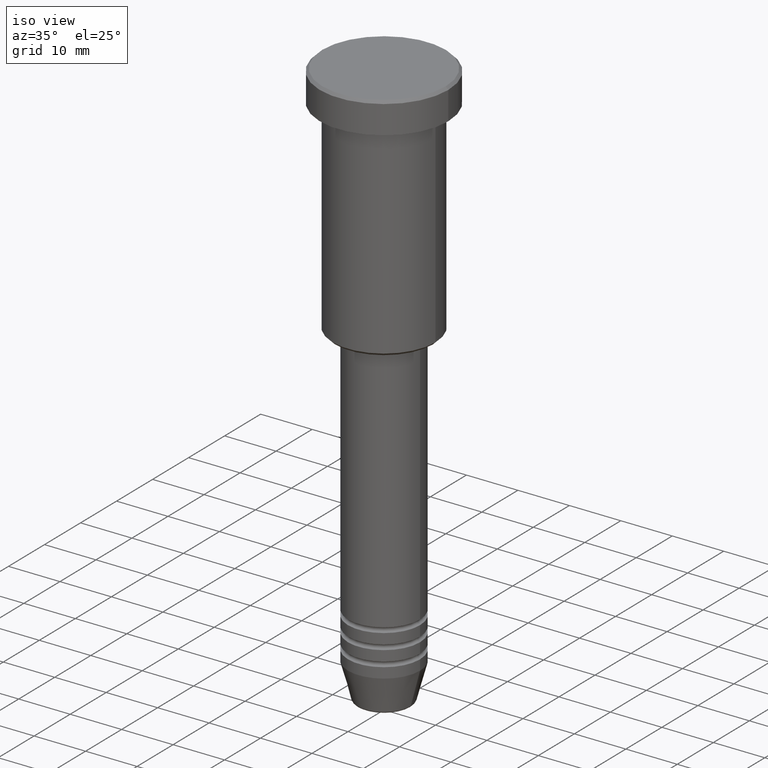
[diagram: clean part render]
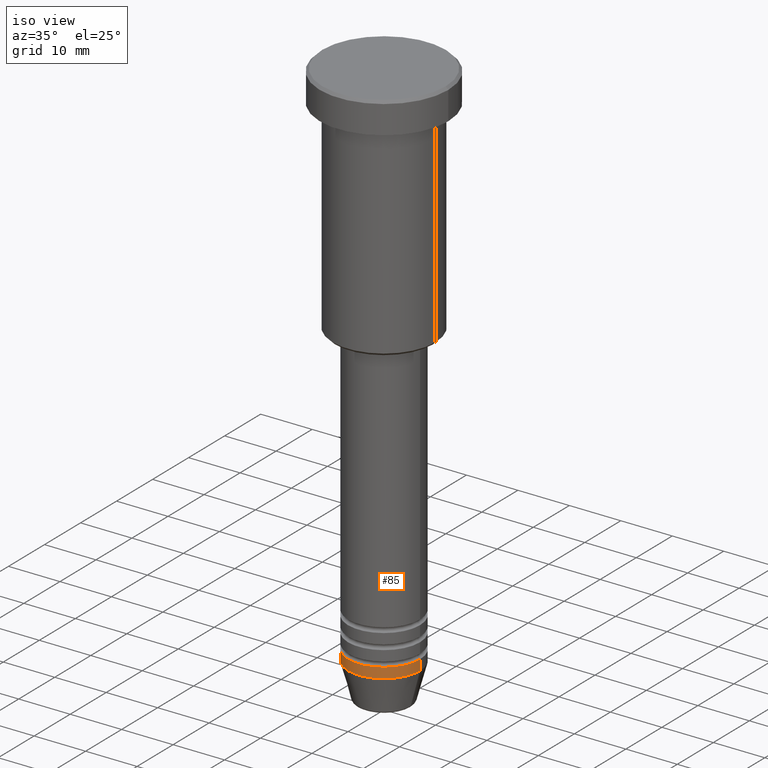
[diagram: same view with one face highlighted and labeled with its STEP entity id]
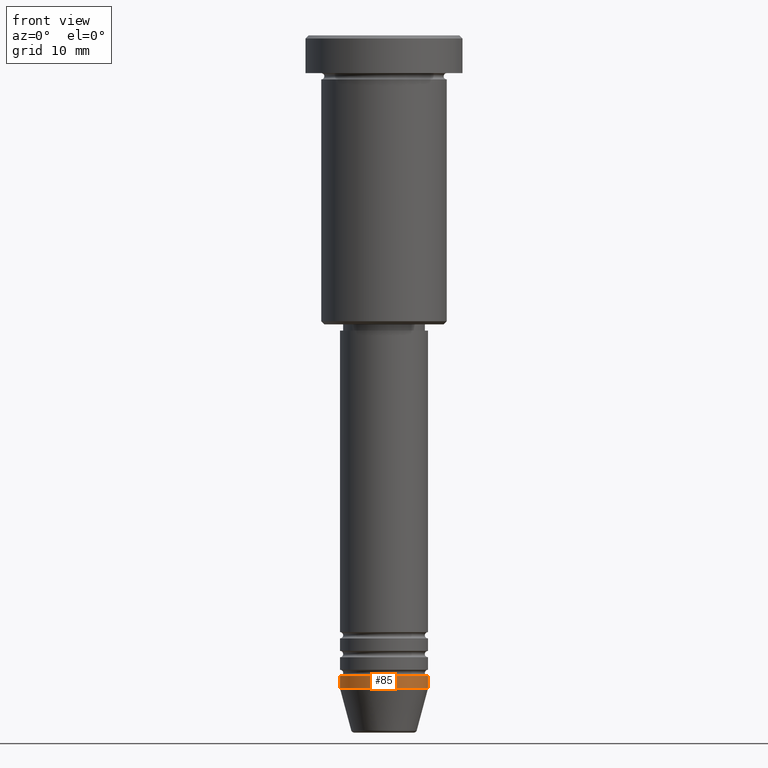
[diagram: same view with one face highlighted and labeled with its STEP entity id]
A machine part, iso view. The second image highlights one B-rep face of the part: STEP entity #85.
A second angle (front view) of the same face is appended — the face is thin or edge-on in the first view.
In plain terms, the highlighted cylindrical surface (partial cylindrical patch) has radius 7 mm, axis along (-0, -0, 1).
Its self-contained STEP definition (entity closure, byte-faithful):
#23 = EDGE_CURVE ( 'NONE', #859, #546, #420, .T. ) ;
#29 = CARTESIAN_POINT ( 'NONE',  ( 7.000000000000000000, 0.000000000000000000, -102.0000000000000142 ) ) ;
#32 = EDGE_CURVE ( 'NONE', #1093, #546, #860, .T. ) ;
#85 = ADVANCED_FACE ( 'NONE', ( #155 ), #519, .T. ) ;
#105 = AXIS2_PLACEMENT_3D ( 'NONE', #693, #1057, #949 ) ;
#106 = DIRECTION ( 'NONE',  ( -0.000000000000000000, -0.000000000000000000, 1.000000000000000000 ) ) ;
#155 = FACE_OUTER_BOUND ( 'NONE', #1129, .T. ) ;
#167 = CARTESIAN_POINT ( 'NONE',  ( 7.000000000000000000, 0.000000000000000000, -104.0000000000000142 ) ) ;
#190 = EDGE_CURVE ( 'NONE', #235, #1093, #273, .T. ) ;
#235 = VERTEX_POINT ( 'NONE', #657 ) ;
#252 = CARTESIAN_POINT ( 'NONE',  ( 0.000000000000000000, 0.000000000000000000, 0.000000000000000000 ) ) ;
#273 = LINE ( 'NONE', #645, #475 ) ;
#344 = CIRCLE ( 'NONE', #655, 7.000000000000000000 ) ;
#406 = ORIENTED_EDGE ( 'NONE', *, *, #32, .F. ) ;
#414 = ORIENTED_EDGE ( 'NONE', *, *, #190, .F. ) ;
#420 = LINE ( 'NONE', #1147, #958 ) ;
#475 = VECTOR ( 'NONE', #106, 1000.000000000000000 ) ;
#496 = CARTESIAN_POINT ( 'NONE',  ( -7.000000000000000000, 8.572527594031473190E-16, -102.0000000000000142 ) ) ;
#519 = CYLINDRICAL_SURFACE ( 'NONE', #975, 7.000000000000000000 ) ;
#527 = DIRECTION ( 'NONE',  ( 1.000000000000000000, 0.000000000000000000, 0.000000000000000000 ) ) ;
#546 = VERTEX_POINT ( 'NONE', #29 ) ;
#564 = ORIENTED_EDGE ( 'NONE', *, *, #781, .T. ) ;
#583 = DIRECTION ( 'NONE',  ( -0.000000000000000000, -0.000000000000000000, 1.000000000000000000 ) ) ;
#645 = CARTESIAN_POINT ( 'NONE',  ( -7.000000000000000000, 8.572527594031473190E-16, 0.000000000000000000 ) ) ;
#655 = AXIS2_PLACEMENT_3D ( 'NONE', #812, #1176, #973 ) ;
#657 = CARTESIAN_POINT ( 'NONE',  ( -7.000000000000000000, 8.572527594031473190E-16, -104.0000000000000142 ) ) ;
#678 = ORIENTED_EDGE ( 'NONE', *, *, #23, .T. ) ;
#693 = CARTESIAN_POINT ( 'NONE',  ( 0.000000000000000000, 0.000000000000000000, -102.0000000000000142 ) ) ;
#781 = EDGE_CURVE ( 'NONE', #235, #859, #344, .T. ) ;
#793 = DIRECTION ( 'NONE',  ( -0.000000000000000000, -0.000000000000000000, 1.000000000000000000 ) ) ;
#812 = CARTESIAN_POINT ( 'NONE',  ( 0.000000000000000000, 0.000000000000000000, -104.0000000000000142 ) ) ;
#859 = VERTEX_POINT ( 'NONE', #167 ) ;
#860 = CIRCLE ( 'NONE', #105, 7.000000000000000000 ) ;
#949 = DIRECTION ( 'NONE',  ( 1.000000000000000000, 0.000000000000000000, 0.000000000000000000 ) ) ;
#958 = VECTOR ( 'NONE', #583, 1000.000000000000000 ) ;
#973 = DIRECTION ( 'NONE',  ( 1.000000000000000000, 0.000000000000000000, 0.000000000000000000 ) ) ;
#975 = AXIS2_PLACEMENT_3D ( 'NONE', #252, #793, #527 ) ;
#1057 = DIRECTION ( 'NONE',  ( -0.000000000000000000, -0.000000000000000000, 1.000000000000000000 ) ) ;
#1093 = VERTEX_POINT ( 'NONE', #496 ) ;
#1129 = EDGE_LOOP ( 'NONE', ( #414, #564, #678, #406 ) ) ;
#1147 = CARTESIAN_POINT ( 'NONE',  ( 7.000000000000000000, 0.000000000000000000, 0.000000000000000000 ) ) ;
#1176 = DIRECTION ( 'NONE',  ( -0.000000000000000000, -0.000000000000000000, 1.000000000000000000 ) ) ;